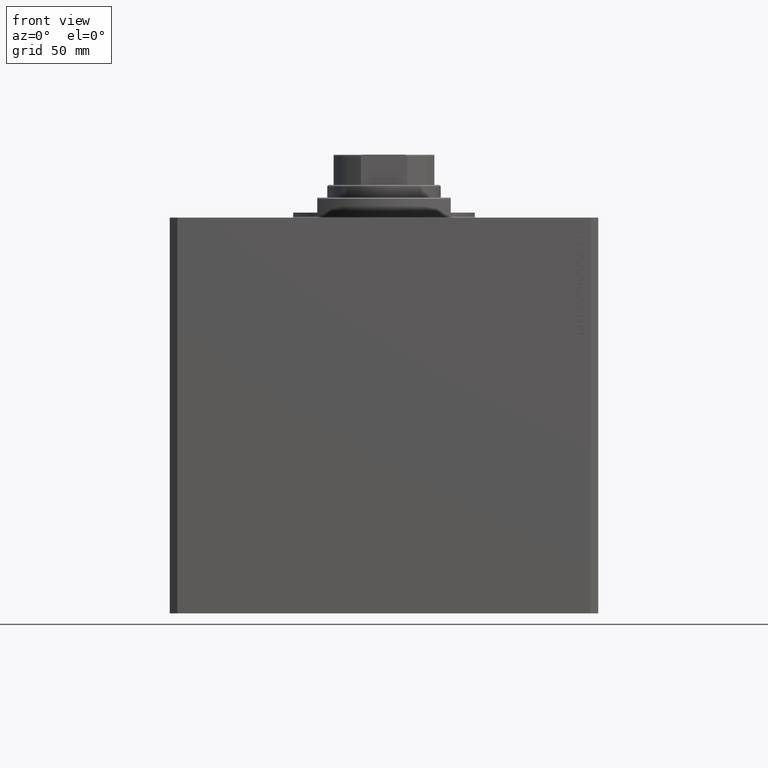
[diagram: clean part render]
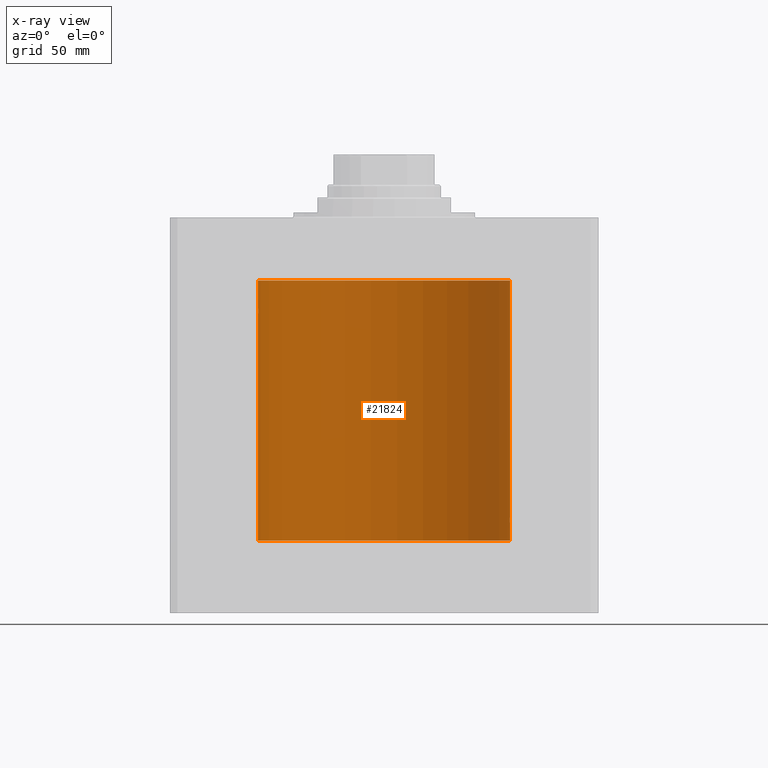
[diagram: x-ray — body ghosted, one internal face saturated and labeled with its STEP entity id]
A machine part, front view, then the same camera in x-ray: the body is ghosted and one INTERNAL B-rep face — a face not visible from any outside direction — is saturated and labeled: STEP entity #21824.
In plain terms, the highlighted cylindrical surface (partial cylindrical patch) has radius 50 mm, axis along (0, 0, 1).
Its self-contained STEP definition (entity closure, byte-faithful):
#163 = DIRECTION ( 'NONE',  ( 0.000000000000000000, 0.000000000000000000, 1.000000000000000000 ) ) ;
#294 = CARTESIAN_POINT ( 'NONE',  ( -50.00000000000000711, 0.1321588334531834663, -34.99999999999998579 ) ) ;
#654 = EDGE_CURVE ( 'NONE', #30887, #16158, #11749, .T. ) ;
#832 = CYLINDRICAL_SURFACE ( 'NONE', #40194, 50.00000000000000000 ) ;
#1086 = CARTESIAN_POINT ( 'NONE',  ( 50.00000000000000000, 0.000000000000000000, -128.0999999999999943 ) ) ;
#1476 = CARTESIAN_POINT ( 'NONE',  ( -49.97474787754178749, 1.590541763713786860, -38.21949285922860184 ) ) ;
#2231 = VERTEX_POINT ( 'NONE', #24338 ) ;
#2475 = CARTESIAN_POINT ( 'NONE',  ( 49.95998398718716516, 2.000000000000564881, -119.8695654969271942 ) ) ;
#2672 = AXIS2_PLACEMENT_3D ( 'NONE', #32177, #163, #18314 ) ;
#2708 = CARTESIAN_POINT ( 'NONE',  ( 49.99229103891970993, 0.8862970221311291530, -118.2023134001857301 ) ) ;
#3429 = CARTESIAN_POINT ( 'NONE',  ( 49.99598718814007015, 0.6449352407546056209, -121.8976971177264375 ) ) ;
#3464 = CARTESIAN_POINT ( 'NONE',  ( -50.00000000000000000, 6.123233995736766085E-15, -128.0999999999999943 ) ) ;
#3492 = ORIENTED_EDGE ( 'NONE', *, *, #4410, .T. ) ;
#4410 = EDGE_CURVE ( 'NONE', #2231, #15210, #37745, .T. ) ;
#4480 = LINE ( 'NONE', #8780, #33447 ) ;
#4838 = VERTEX_POINT ( 'NONE', #29308 ) ;
#5058 = CARTESIAN_POINT ( 'NONE',  ( -49.97734518528593384, 1.507874855161120076, -38.32050907330479106 ) ) ;
#5303 = CARTESIAN_POINT ( 'NONE',  ( -50.00000000000000000, 6.123233989258355553E-15, -38.99999999999999289 ) ) ;
#6003 = CARTESIAN_POINT ( 'NONE',  ( -49.97476780406313424, 1.598950834465297177, -35.77059039179120958 ) ) ;
#6285 = CARTESIAN_POINT ( 'NONE',  ( 49.99746746122490038, 0.5192910711913449884, -118.0641786156605662 ) ) ;
#6357 = CARTESIAN_POINT ( 'NONE',  ( 50.00000000000000000, 0.000000000000000000, -24.99999999999999289 ) ) ;
#6513 = CARTESIAN_POINT ( 'NONE',  ( 49.99599990398858296, 0.6439560014968555013, -118.1019693915201856 ) ) ;
#6543 = CARTESIAN_POINT ( 'NONE',  ( 49.99007528730422933, 1.002097354324908984, -121.7357691082803797 ) ) ;
#6901 = VERTEX_POINT ( 'NONE', #6357 ) ;
#7239 = CARTESIAN_POINT ( 'NONE',  ( 49.96952841668770162, 1.748193601366643479, -121.0058470866195250 ) ) ;
#7483 = CARTESIAN_POINT ( 'NONE',  ( 50.00000000000001421, 0.1321888607815029648, -122.0000000000000426 ) ) ;
#7978 = EDGE_CURVE ( 'NONE', #12133, #4838, #27338, .T. ) ;
#8560 = VECTOR ( 'NONE', #11341, 1000.000000000000000 ) ;
#8780 = CARTESIAN_POINT ( 'NONE',  ( -50.00000000000000000, 6.123233995736766085E-15, -128.0999999999999943 ) ) ;
#8878 = CARTESIAN_POINT ( 'NONE',  ( -49.99228773711749341, 0.8864865707480856782, -38.79759541170199100 ) ) ;
#9092 = CIRCLE ( 'NONE', #28903, 50.00000000000000000 ) ;
#9356 = CARTESIAN_POINT ( 'NONE',  ( -49.96216141728076821, 1.947404903100933504, -36.47512611661414184 ) ) ;
#9527 = CARTESIAN_POINT ( 'NONE',  ( 49.95998398718716516, 2.000000000000563549, -120.0000000000000000 ) ) ;
#9872 = CARTESIAN_POINT ( 'NONE',  ( 49.98263500888552358, 1.320952538904951457, -118.4925159043553435 ) ) ;
#9915 = VERTEX_POINT ( 'NONE', #16273 ) ;
#10363 = CARTESIAN_POINT ( 'NONE',  ( 49.99748146545037031, 0.5178754880116730464, -121.9361813255630267 ) ) ;
#10593 = CARTESIAN_POINT ( 'NONE',  ( 49.98259270595344361, 1.322475809934058111, -121.5060172839778971 ) ) ;
#10810 = ORIENTED_EDGE ( 'NONE', *, *, #14081, .T. ) ;
#11216 = EDGE_CURVE ( 'NONE', #6901, #32531, #20967, .T. ) ;
#11341 = DIRECTION ( 'NONE',  ( -0.000000000000000000, -0.000000000000000000, 1.000000000000000000 ) ) ;
#11749 = B_SPLINE_CURVE_WITH_KNOTS ( 'NONE', 3,
 ( #32307, #2475, #28012, #35647, #31612, #46163, #46859, #14156, #13456, #9872, #24428, #38981, #2708, #6513, #6285, #46397, #28253, #43262 ),
 .UNSPECIFIED., .F., .F.,
 ( 4, 2, 2, 2, 2, 2, 2, 2, 4 ),
 ( 0.003127478965430518024, 0.003518236230679781373, 0.003908993495929044722, 0.004299750761178307637, 0.004690508026427571420, 0.005081265291676834335, 0.005472022556926097250, 0.005862779822175361033, 0.006253537087424623948 ),
 .UNSPECIFIED. ) ;
#12133 = VERTEX_POINT ( 'NONE', #1086 ) ;
#12218 = CARTESIAN_POINT ( 'NONE',  ( -49.96768660357033554, 1.798001154690308967, -37.88564223843271606 ) ) ;
#12223 = DIRECTION ( 'NONE',  ( 1.000000000000000000, 0.000000000000000000, 0.000000000000000000 ) ) ;
#12703 = CARTESIAN_POINT ( 'NONE',  ( -49.99227820941651146, 0.8870121366447422107, -35.20266925059756602 ) ) ;
#12780 = CARTESIAN_POINT ( 'NONE',  ( 50.00000000000000000, 0.000000000000000000, -128.0999999999999943 ) ) ;
#13168 = CARTESIAN_POINT ( 'NONE',  ( -49.99947195246410558, 0.2631107820817846776, -38.98691922436691470 ) ) ;
#13456 = CARTESIAN_POINT ( 'NONE',  ( 49.97735290927441554, 1.507618726120014019, -118.6792011185220304 ) ) ;
#13956 = CARTESIAN_POINT ( 'NONE',  ( 49.96215500645249108, 1.947567242801465204, -120.5243005476701370 ) ) ;
#14081 = EDGE_CURVE ( 'NONE', #16158, #6901, #43611, .T. ) ;
#14156 = CARTESIAN_POINT ( 'NONE',  ( 49.97475596784978080, 1.590287868744626465, -118.7801793296755051 ) ) ;
#14864 = CARTESIAN_POINT ( 'NONE',  ( -49.99947640732126786, 0.2621063239499291098, -35.01297064418641014 ) ) ;
#15210 = VERTEX_POINT ( 'NONE', #26533 ) ;
#15238 = EDGE_LOOP ( 'NONE', ( #29053, #25496, #36598, #16951, #40004, #10810, #44855, #17586, #3492 ) ) ;
#15640 = FACE_OUTER_BOUND ( 'NONE', #15238, .T. ) ;
#15808 = CARTESIAN_POINT ( 'NONE',  ( -49.99598898362840771, 0.6447919409892277631, -35.10225615370830354 ) ) ;
#16056 = CARTESIAN_POINT ( 'NONE',  ( -49.96050770337905789, 1.987038794023258559, -37.26226128698008466 ) ) ;
#16158 = VERTEX_POINT ( 'NONE', #20379 ) ;
#16273 = CARTESIAN_POINT ( 'NONE',  ( -50.00000000000000000, 6.123233995736766085E-15, -128.0999999999999943 ) ) ;
#16297 = CARTESIAN_POINT ( 'NONE',  ( -49.98524905102831184, 1.219303128102697586, -35.40928153240807319 ) ) ;
#16951 = ORIENTED_EDGE ( 'NONE', *, *, #32841, .T. ) ;
#17586 = ORIENTED_EDGE ( 'NONE', *, *, #44093, .F. ) ;
#17821 = CARTESIAN_POINT ( 'NONE',  ( -50.00000000000000000, 6.123233995736766085E-15, -24.99999999999999289 ) ) ;
#18314 = DIRECTION ( 'NONE',  ( 1.000000000000000000, 0.000000000000000000, 0.000000000000000000 ) ) ;
#19264 = DIRECTION ( 'NONE',  ( -0.000000000000000000, -0.000000000000000000, 1.000000000000000000 ) ) ;
#19447 = DIRECTION ( 'NONE',  ( -0.000000000000000000, -0.000000000000000000, 1.000000000000000000 ) ) ;
#19854 = CARTESIAN_POINT ( 'NONE',  ( -49.98259925701036366, 1.322227939264704055, -35.49376754264949341 ) ) ;
#20093 = CARTESIAN_POINT ( 'NONE',  ( -49.95998770768563446, 1.999907061972440614, -36.73836523183381786 ) ) ;
#20379 = CARTESIAN_POINT ( 'NONE',  ( 50.00000000000000000, -6.476745247090812175E-24, -118.0000000000000000 ) ) ;
#20967 = CIRCLE ( 'NONE', #2672, 50.00000000000000000 ) ;
#21798 = CARTESIAN_POINT ( 'NONE',  ( 49.95998398718717937, 2.000000000000562217, -120.2609875752831243 ) ) ;
#21824 = ADVANCED_FACE ( 'NONE', ( #15640 ), #832, .F. ) ;
#21876 = CARTESIAN_POINT ( 'NONE',  ( 50.00000000000000000, 0.000000000000000000, -128.0999999999999943 ) ) ;
#24139 = CARTESIAN_POINT ( 'NONE',  ( -49.99599814809604226, 0.6440968921210813436, -38.89798495722402549 ) ) ;
#24338 = CARTESIAN_POINT ( 'NONE',  ( -50.00000000000000000, -9.003882097956092458E-15, -34.99999999999999289 ) ) ;
#24428 = CARTESIAN_POINT ( 'NONE',  ( 49.98523696312182096, 1.219762141829697999, -118.4096701367431876 ) ) ;
#24911 = CARTESIAN_POINT ( 'NONE',  ( 49.95998398718716516, 2.000000000000563549, -120.0000000000000000 ) ) ;
#25496 = ORIENTED_EDGE ( 'NONE', *, *, #35695, .F. ) ;
#25623 = VECTOR ( 'NONE', #46965, 1000.000000000000000 ) ;
#26533 = CARTESIAN_POINT ( 'NONE',  ( -50.00000000000000000, 6.123233989258355553E-15, -38.99999999999999289 ) ) ;
#27263 = CARTESIAN_POINT ( 'NONE',  ( -49.99004874905787688, 1.003375892571688910, -38.73499659467171341 ) ) ;
#27338 = LINE ( 'NONE', #12780, #32322 ) ;
#27724 = CARTESIAN_POINT ( 'NONE',  ( -49.99748258676788026, 0.5177602892975206039, -35.06378986968200451 ) ) ;
#28012 = CARTESIAN_POINT ( 'NONE',  ( 49.96051123778291725, 1.986950357331387140, -119.7370861026879680 ) ) ;
#28253 = CARTESIAN_POINT ( 'NONE',  ( 50.00000000000000000, 0.1305077942112368161, -117.9999999999999858 ) ) ;
#28281 = CARTESIAN_POINT ( 'NONE',  ( 49.99227494580976838, 0.8871990329080465809, -121.7972405769405952 ) ) ;
#28903 = AXIS2_PLACEMENT_3D ( 'NONE', #29668, #44928, #12223 ) ;
#29053 = ORIENTED_EDGE ( 'NONE', *, *, #31672, .F. ) ;
#29308 = CARTESIAN_POINT ( 'NONE',  ( 50.00000000000000000, 4.564789087886820642E-17, -122.0000000000000000 ) ) ;
#29668 = CARTESIAN_POINT ( 'NONE',  ( 0.000000000000000000, 0.000000000000000000, -128.0999999999999943 ) ) ;
#29728 = CARTESIAN_POINT ( 'NONE',  ( 0.000000000000000000, 0.000000000000000000, -128.0999999999999943 ) ) ;
#30617 = CARTESIAN_POINT ( 'NONE',  ( -49.98523123236354593, 1.219998263164736807, -38.59015112589698759 ) ) ;
#30864 = CARTESIAN_POINT ( 'NONE',  ( -50.00000000000001421, 0.1305374531515847703, -38.99999999999999289 ) ) ;
#30887 = VERTEX_POINT ( 'NONE', #9527 ) ;
#31612 = CARTESIAN_POINT ( 'NONE',  ( 49.96398801900035380, 1.898003203340656198, -119.3559911791024462 ) ) ;
#31672 = EDGE_CURVE ( 'NONE', #9915, #15210, #4480, .T. ) ;
#32177 = CARTESIAN_POINT ( 'NONE',  ( 0.000000000000000000, 0.000000000000000000, -24.99999999999999289 ) ) ;
#32307 = CARTESIAN_POINT ( 'NONE',  ( 49.95998398718716516, 2.000000000000563549, -120.0000000000000000 ) ) ;
#32322 = VECTOR ( 'NONE', #19447, 1000.000000000000000 ) ;
#32531 = VERTEX_POINT ( 'NONE', #17821 ) ;
#32841 = EDGE_CURVE ( 'NONE', #4838, #30887, #40919, .T. ) ;
#33004 = CARTESIAN_POINT ( 'NONE',  ( -50.00000000000000000, -9.003882097956092458E-15, -34.99999999999999289 ) ) ;
#33036 = CARTESIAN_POINT ( 'NONE',  ( 49.99947616946592177, 0.2621653831979099958, -121.9870235173229958 ) ) ;
#33447 = VECTOR ( 'NONE', #19264, 1000.000000000000000 ) ;
#34012 = DIRECTION ( 'NONE',  ( -0.000000000000000000, -0.000000000000000000, 1.000000000000000000 ) ) ;
#34185 = CARTESIAN_POINT ( 'NONE',  ( -49.99007938266582585, 1.001891274688315958, -35.26411427938287346 ) ) ;
#34430 = CARTESIAN_POINT ( 'NONE',  ( -49.99746633848589283, 0.5194059499681270564, -38.93579253716512767 ) ) ;
#34674 = CARTESIAN_POINT ( 'NONE',  ( -49.98262832829516356, 1.321205413082626068, -38.50726475708437135 ) ) ;
#35647 = CARTESIAN_POINT ( 'NONE',  ( 49.96251892914505532, 1.935809163618958051, -119.4806366185916033 ) ) ;
#35676 = CARTESIAN_POINT ( 'NONE',  ( 49.97475955401470316, 1.599209500590069943, -121.2290851407538668 ) ) ;
#35695 = EDGE_CURVE ( 'NONE', #12133, #9915, #9092, .T. ) ;
#36598 = ORIENTED_EDGE ( 'NONE', *, *, #7978, .T. ) ;
#37338 = DIRECTION ( 'NONE',  ( 1.000000000000000000, 0.000000000000000000, 0.000000000000000000 ) ) ;
#37745 = B_SPLINE_CURVE_WITH_KNOTS ( 'NONE', 3,
 ( #33004, #294, #14864, #27724, #15808, #12703, #34185, #16297, #19854, #6003, #41330, #9356, #20093, #38693, #16056, #38463, #45407, #12218, #41576, #1476, #5058, #34674, #30617, #27263, #8878, #24139, #34430, #13168, #30864, #5303 ),
 .UNSPECIFIED., .F., .F.,
 ( 4, 2, 2, 2, 2, 2, 2, 2, 2, 2, 2, 2, 2, 2, 4 ),
 ( 1.951448278188086515E-19, 0.0003908460679639682526, 0.0007816921359279362883, 0.001172538203891904324, 0.001563384271855872360, 0.002345076407783809082, 0.003126768543711746021, 0.003517614611675714056, 0.003908460679639682092, 0.004299306747603650128, 0.004690152815567618164, 0.005080998883531586199, 0.005471844951495554235, 0.005862691019459522271, 0.006253537087423490307 ),
 .UNSPECIFIED. ) ;
#38463 = CARTESIAN_POINT ( 'NONE',  ( -49.96251288907240706, 1.935964606501246799, -37.51879205273049678 ) ) ;
#38693 = CARTESIAN_POINT ( 'NONE',  ( -49.95998213453558634, 2.000046279225707213, -37.12975027192857880 ) ) ;
#38981 = CARTESIAN_POINT ( 'NONE',  ( 49.99005286890574951, 1.003169031662882960, -118.2648859834236532 ) ) ;
#39933 = CARTESIAN_POINT ( 'NONE',  ( 50.00000000000000000, 4.564789087886820642E-17, -122.0000000000000000 ) ) ;
#40004 = ORIENTED_EDGE ( 'NONE', *, *, #654, .T. ) ;
#40194 = AXIS2_PLACEMENT_3D ( 'NONE', #29728, #34012, #37338 ) ;
#40919 = B_SPLINE_CURVE_WITH_KNOTS ( 'NONE', 3,
 ( #39933, #7483, #33036, #10363, #3429, #28281, #6543, #42834, #10593, #35676, #7239, #13956, #21798, #24911 ),
 .UNSPECIFIED., .F., .F.,
 ( 4, 2, 2, 2, 2, 2, 4 ),
 ( 4.436058941706983627E-20, 0.0003909348706788073262, 0.0007818697413576145439, 0.001172804612036421924, 0.001563739482715229088, 0.002345609224072873773, 0.003127478965430518024 ),
 .UNSPECIFIED. ) ;
#41330 = CARTESIAN_POINT ( 'NONE',  ( -49.96953708402610062, 1.747948211813102892, -35.99374183287712725 ) ) ;
#41576 = CARTESIAN_POINT ( 'NONE',  ( -49.96992887184637055, 1.735355026673580214, -38.00276062309308855 ) ) ;
#42834 = CARTESIAN_POINT ( 'NONE',  ( 49.98524326844813004, 1.219541607305973274, -121.5905382022620813 ) ) ;
#43262 = CARTESIAN_POINT ( 'NONE',  ( 50.00000000000000000, -6.476745247090812175E-24, -118.0000000000000000 ) ) ;
#43611 = LINE ( 'NONE', #21876, #25623 ) ;
#44093 = EDGE_CURVE ( 'NONE', #2231, #32531, #46924, .T. ) ;
#44855 = ORIENTED_EDGE ( 'NONE', *, *, #11216, .T. ) ;
#44928 = DIRECTION ( 'NONE',  ( 0.000000000000000000, 0.000000000000000000, 1.000000000000000000 ) ) ;
#45407 = CARTESIAN_POINT ( 'NONE',  ( -49.96398106625520086, 1.898185627324846303, -37.64347622409935212 ) ) ;
#46163 = CARTESIAN_POINT ( 'NONE',  ( 49.96769480970100119, 1.797773714148178881, -119.1139000090265938 ) ) ;
#46397 = CARTESIAN_POINT ( 'NONE',  ( 49.99947219664575471, 0.2630509640965526530, -118.0130747777099032 ) ) ;
#46859 = CARTESIAN_POINT ( 'NONE',  ( 49.96993720661966876, 1.735115303979041013, -118.9968286013222354 ) ) ;
#46924 = LINE ( 'NONE', #3464, #8560 ) ;
#46965 = DIRECTION ( 'NONE',  ( -0.000000000000000000, -0.000000000000000000, 1.000000000000000000 ) ) ;